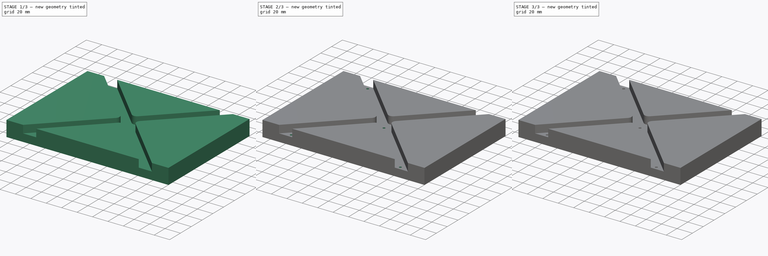
[diagram: build sequence overview — one tinted view per stage of 3, left to right]
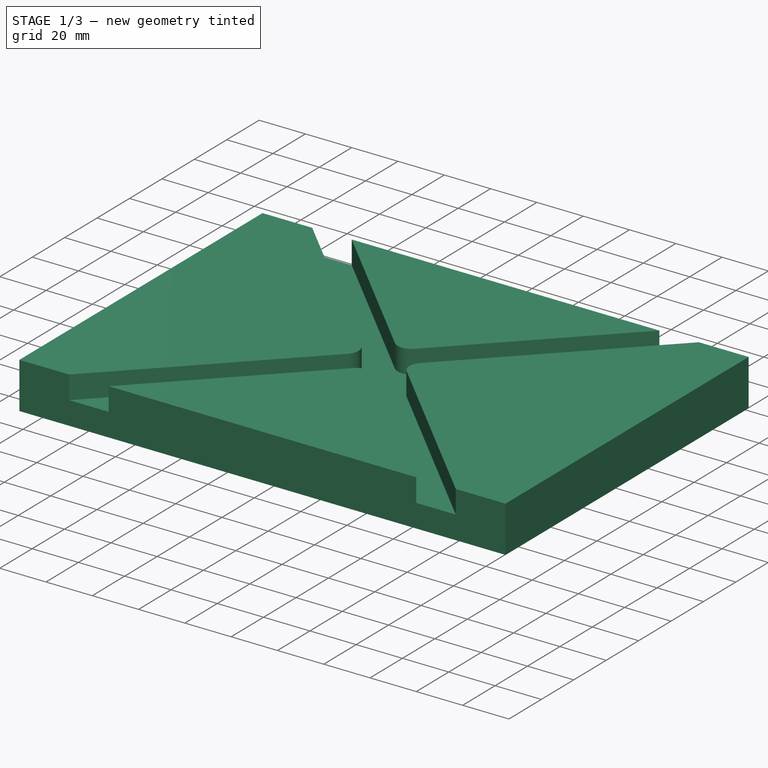
[diagram: stage 1 of 3 — iso view after this stage's code; geometry added in this stage tinted green]
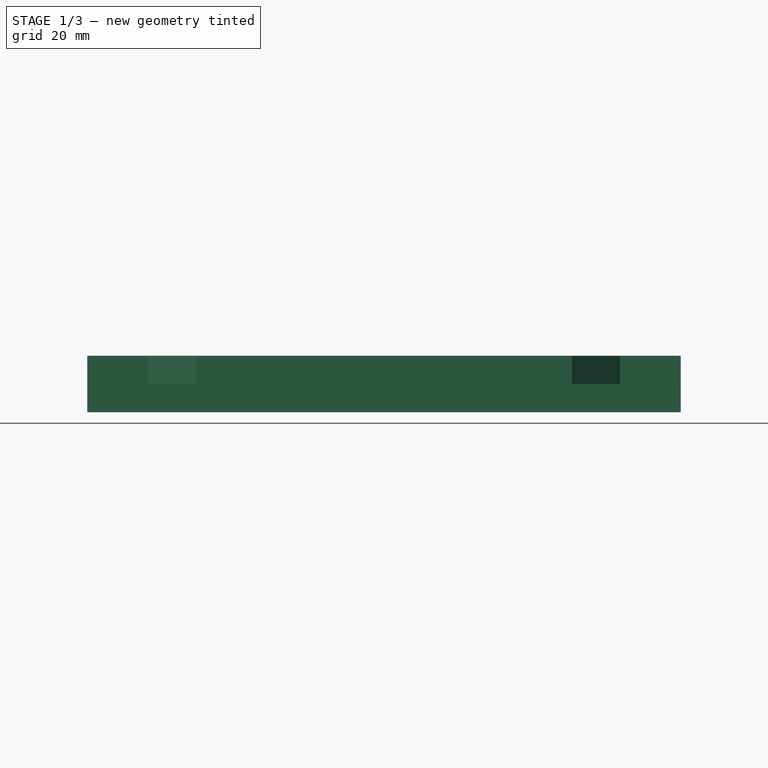
[diagram: stage 1 of 3 — front view after this stage's code; geometry added in this stage tinted green]
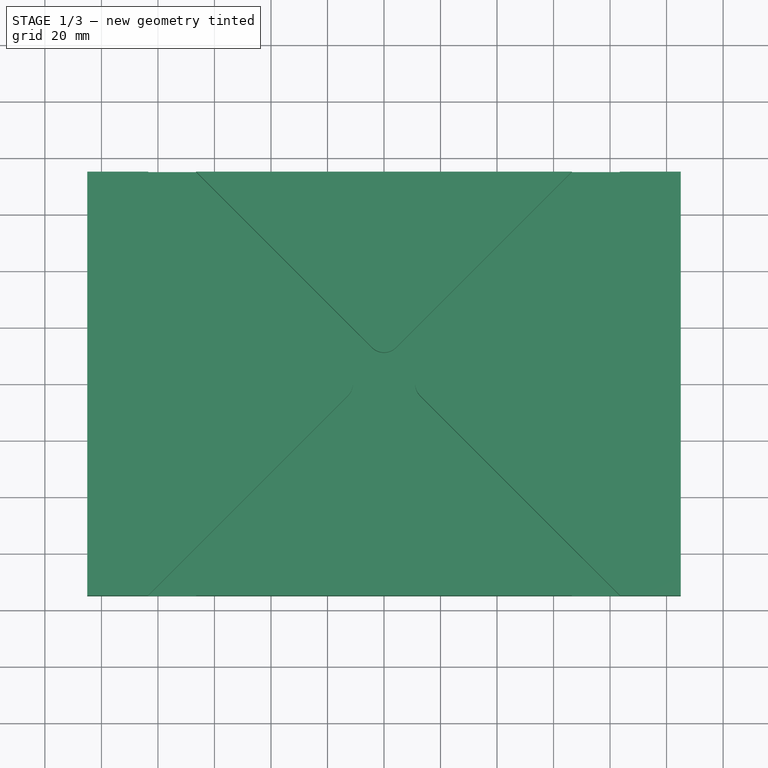
[diagram: stage 1 of 3 — top view after this stage's code; geometry added in this stage tinted green]
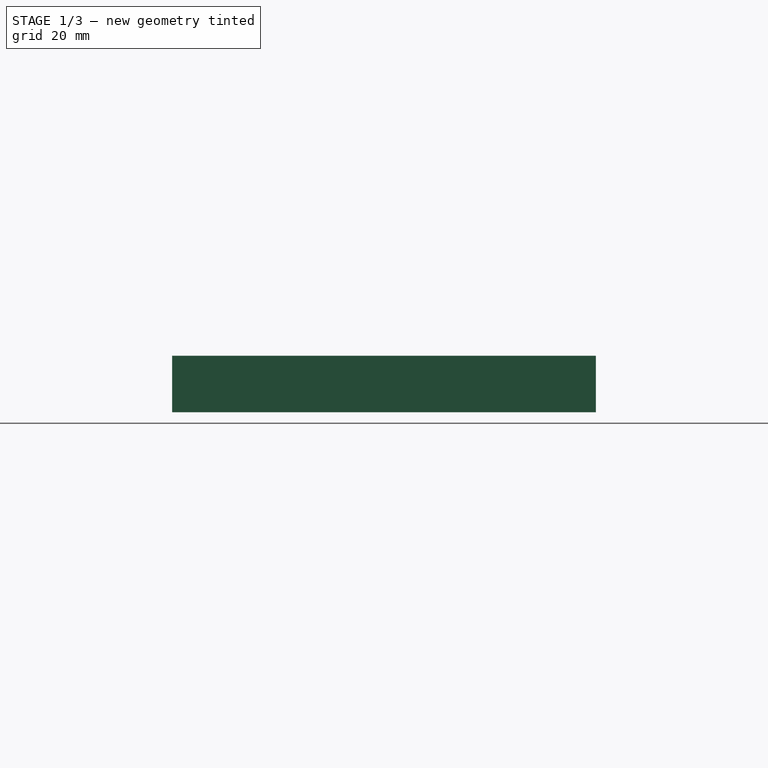
[diagram: stage 1 of 3 — right view after this stage's code; geometry added in this stage tinted green]
FCSTD DOCUMENT  (FreeCAD 0.19R22164 (Git))
Label: Y_Carriage
License: All rights reserved
LicenseURL: http://en.wikipedia.org/wiki/All_rights_reserved
objects: Sketcher::SketchObject×5, PartDesign::Pocket×3, PartDesign::Pad×1, PartDesign::Hole×1, PartDesign::Body×1
note: 16 computed .brp shape members not serialized (recipe doc carries the construction recipe); baked Part::Feature solids carry a one-line shape summary decoded from their .brp

FEATURE [Sketcher::SketchObject] Sketch
  MapMode = 5
  Support = -> [XY_Plane]
  sketch-geometry (4):
    g0: LineSegment StartX=-105 StartY=75 StartZ=0 EndX=105 EndY=75 EndZ=0
    g1: LineSegment StartX=105 StartY=75 StartZ=0 EndX=105 EndY=-75 EndZ=0
    g2: LineSegment StartX=105 StartY=-75 StartZ=0 EndX=-105 EndY=-75 EndZ=0
    g3: LineSegment StartX=-105 StartY=-75 StartZ=0 EndX=-105 EndY=75 EndZ=0
  constraints (12):
    c: Coincident(g0,g1)
    c: Coincident(g1,g2)
    c: Coincident(g2,g3)
    c: Coincident(g3,g0)
    c: Horizontal(g0)
    c: Horizontal(g2)
    c: Vertical(g1)
    c: Vertical(g3)
    c: DistanceX(g-1,g1) = 105
    c: DistanceX(g2,g1) = 210
    c: DistanceY(g1,g-1) = 75
    c: DistanceY(g1,g0) = 150
FEATURE [PartDesign::Pad] Pad
  Length = 20
  Length2 = 100
  Profile = -> Sketch
  Type = 0
FEATURE [Sketcher::SketchObject] Sketch001
  AttachmentOffset = pos=(0,0,20) rot=(0,0,1;0rad)
  MapMode = 5
  Placement = pos=(0,0,20) rot=(0,0,1;0rad)
  Support = -> [XY_Plane]
  sketch-geometry (18):
    g0: LineSegment [constr] StartX=4.24074 StartY=-4.24074 StartZ=0 EndX=75 EndY=-75 EndZ=0
    g1: LineSegment [constr] StartX=75 StartY=75 StartZ=0 EndX=4.24267 EndY=4.24267 EndZ=0
    g2: ArcOfCircle CenterX=17.013 CenterY=-6.20534e-06 CenterZ=0 NormalX=0 NormalY=0 NormalZ=1 AngleXU=0 Radius=6 StartAngle=2.35619 EndAngle=3.92699
    g3: LineSegment StartX=85.7493 StartY=77.2216 StartZ=0 EndX=12.7703 EndY=4.24263 EndZ=0
    g4: LineSegment StartX=12.7703 StartY=-4.24265 StartZ=0 EndX=91.3404 EndY=-82.8127 EndZ=0
    g5: LineSegment StartX=77.2216 StartY=85.7493 StartZ=0 EndX=4.24939 EndY=12.7771 EndZ=0
    g6: LineSegment StartX=4.24975 StartY=-12.7775 StartZ=0 EndX=82.8127 EndY=-91.3405 EndZ=0
    g7: LineSegment StartX=85.7493 StartY=77.2216 StartZ=0 EndX=77.2216 EndY=85.7493 EndZ=0
    g8: LineSegment StartX=82.8127 StartY=-91.3405 StartZ=0 EndX=91.3404 EndY=-82.8127 EndZ=0
    g9: LineSegment StartX=-77.2216 StartY=85.7501 StartZ=0 EndX=-4.23552 EndY=12.7767 EndZ=0
    g10: LineSegment StartX=-85.7486 StartY=77.2216 StartZ=0 EndX=-77.2216 EndY=85.7501 EndZ=0
    g11: LineSegment StartX=-85.7486 StartY=77.2216 StartZ=0 EndX=-12.7568 EndY=4.24264 EndZ=0
    g12: ArcOfCircle CenterX=-16.9991 CenterY=-0.00037008 CenterZ=0 NormalX=0 NormalY=0 NormalZ=1 AngleXU=0 Radius=6 StartAngle=5.4977 EndAngle=7.06867
    g13: LineSegment StartX=-12.7569 StartY=-4.2434 StartZ=0 EndX=-91.3404 EndY=-82.8127 EndZ=0
    g14: LineSegment StartX=-82.8135 StartY=-91.3412 StartZ=0 EndX=-91.3404 EndY=-82.8127 EndZ=0
    g15: LineSegment StartX=-4.23514 StartY=-12.7771 StartZ=0 EndX=-82.8135 EndY=-91.3412 EndZ=0
    g16: ArcOfCircle CenterX=0.00675017 CenterY=17.0197 CenterZ=0 NormalX=0 NormalY=0 NormalZ=1 AngleXU=0 Radius=6 StartAngle=3.92708 EndAngle=5.49779
    g17: ArcOfCircle CenterX=0.00711406 CenterY=-17.0201 CenterZ=0 NormalX=0 NormalY=0 NormalZ=1 AngleXU=0 Radius=6 StartAngle=0.785398 EndAngle=2.3561
  constraints (41):
    c: DistanceY(g-1,g1) = 75
    c: DistanceX(g-1,g1) = 75
    c: DistanceX(g-1,g0) = 75
    c: DistanceY(g0,g-1) = 75
    c: Angle(g-1,g1) = 0.785398
    c: Angle(g0,g-1) = 0.785398
    c: Tangent(g3,g2) = -1.5708
    c: Tangent(g4,g2) = -1.5708
    c: Radius(g2) = 6
    c: Parallel(g1,g3)
    c: Parallel(g0,g4)
    c: Parallel(g5,g3)
    c: Parallel(g6,g4)
    c: Coincident(g7,g3)
    c: Perpendicular(g3,g7)
    c: Coincident(g5,g7)
    c: Coincident(g8,g6)
    c: Perpendicular(g8,g6)
    c: Distance(g6,g4) = 12.06
    c: Coincident(g4,g8)
    c: Distance(g3,g5) = 12.06
    c: Distance(g1,g3) = 6.03
    c: Tangent(g11,g12) = 1.5708
    c: Tangent(g13,g12) = 1.5708
    c: Radius(g12) = 6
    c: Parallel(g9,g11)
    c: Parallel(g15,g13)
    c: Coincident(g10,g11)
    c: Perpendicular(g11,g10)
    c: Coincident(g9,g10)
    c: Coincident(g14,g15)
    c: Perpendicular(g14,g15)
    c: Distance(g15,g13) = 12.06
    c: Coincident(g13,g14)
    c: Distance(g11,g9) = 12.06
    c: Tangent(g9,g16) = -1.5708
    c: Tangent(g5,g16) = 1.5708
    c: Tangent(g15,g17) = -1.5708
    c: Tangent(g6,g17) = 1.5708
    c: Radius(g17) = 6
    c: Radius(g16) = 6
FEATURE [PartDesign::Pocket] Pocket
  BaseFeature = -> Pad
  Length = 10
  Length2 = 100
  Profile = -> Sketch001
  Type = 0
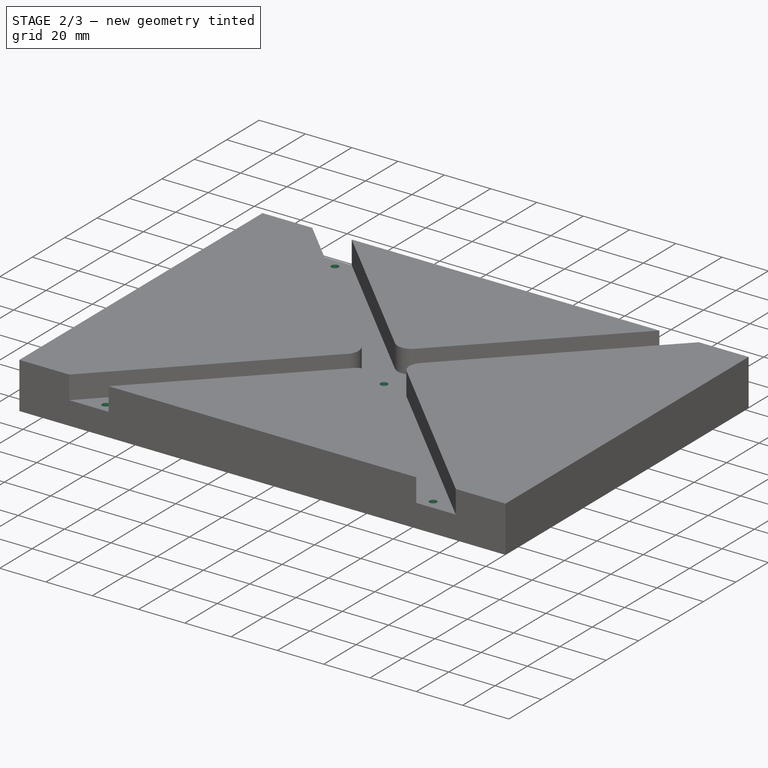
[diagram: stage 2 of 3 — iso view after this stage's code; geometry added in this stage tinted green]
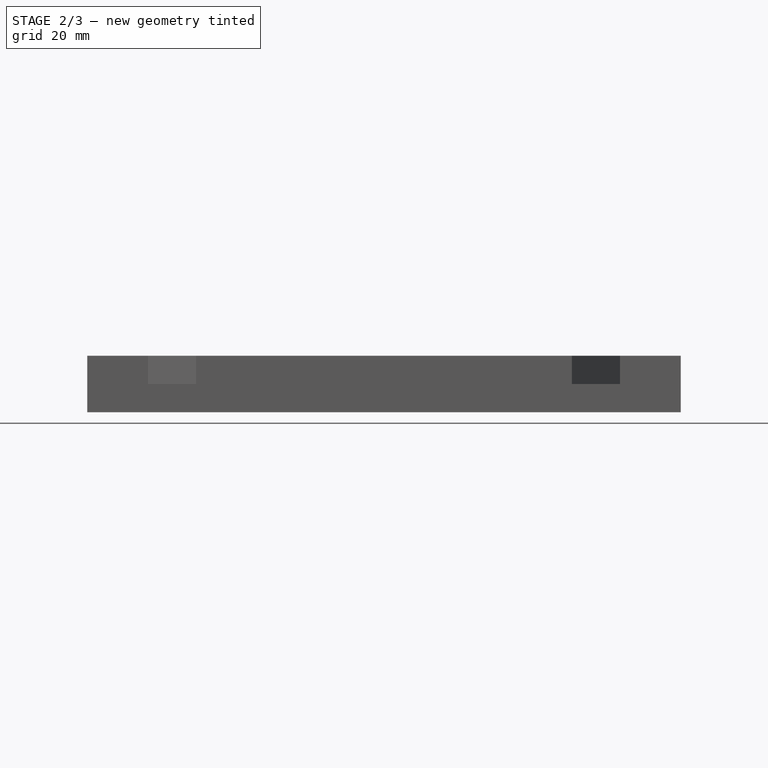
[diagram: stage 2 of 3 — front view after this stage's code; geometry added in this stage tinted green]
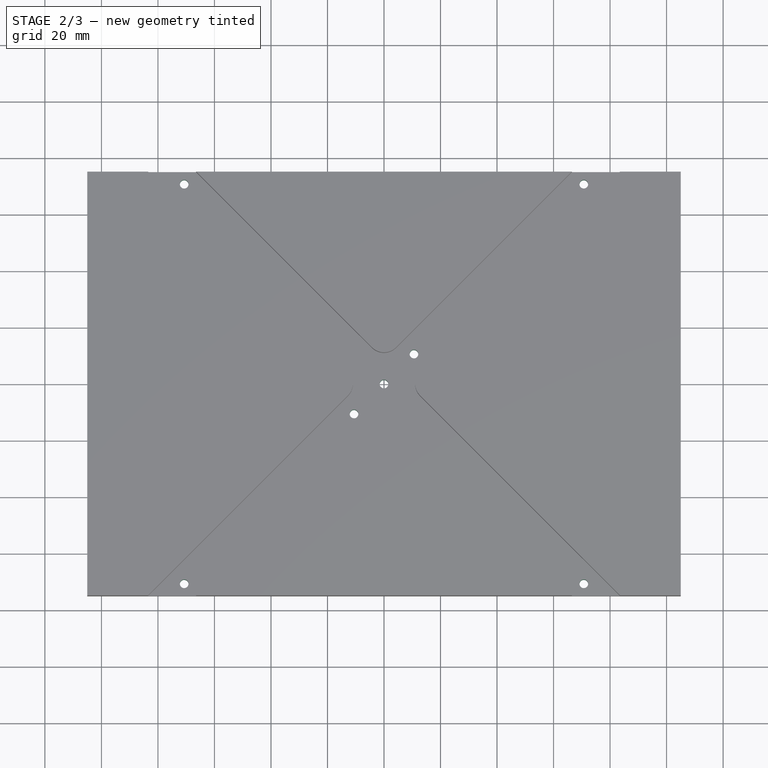
[diagram: stage 2 of 3 — top view after this stage's code; geometry added in this stage tinted green]
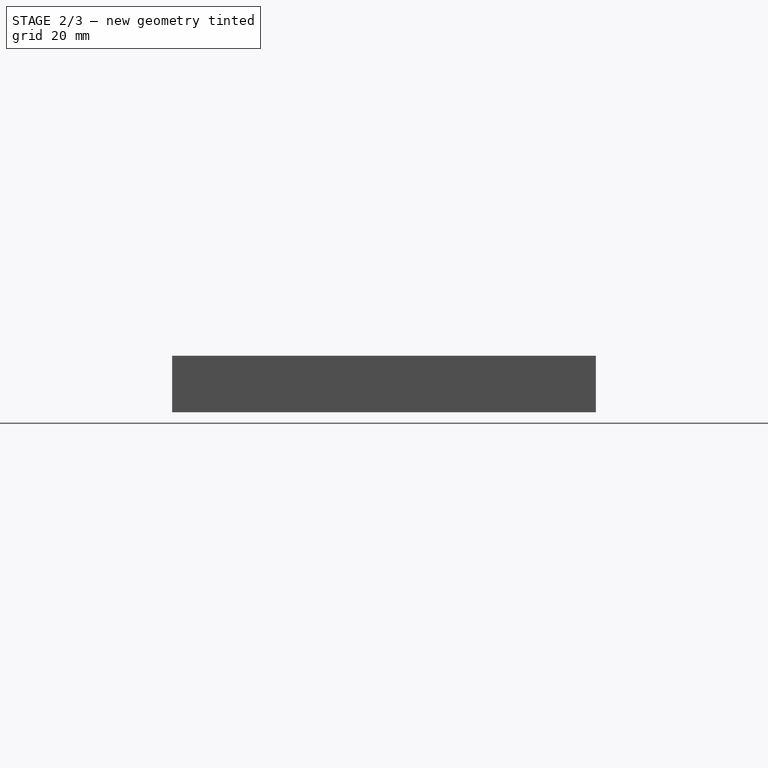
[diagram: stage 2 of 3 — right view after this stage's code; geometry added in this stage tinted green]
FEATURE [Sketcher::SketchObject] Sketch002
  AttachmentOffset = pos=(0,0,20) rot=(0,0,1;0rad)
  MapMode = 5
  Placement = pos=(0,0,20) rot=(0,0,1;0rad)
  Support = -> [XY_Plane]
  sketch-geometry (11):
    g0: Circle CenterX=70.7107 CenterY=70.7107 CenterZ=0 NormalX=0 NormalY=0 NormalZ=1 AngleXU=0 Radius=1.5
    g1: LineSegment [constr] StartX=0 StartY=0 StartZ=0 EndX=70.7107 EndY=70.7107 EndZ=0
    g2: Circle CenterX=-70.7107 CenterY=70.7107 CenterZ=0 NormalX=0 NormalY=0 NormalZ=1 AngleXU=0 Radius=1.5
    g3: Circle CenterX=70.7107 CenterY=-70.7107 CenterZ=0 NormalX=0 NormalY=0 NormalZ=1 AngleXU=0 Radius=1.5
    g4: Circle CenterX=-70.7107 CenterY=-70.7107 CenterZ=0 NormalX=0 NormalY=0 NormalZ=1 AngleXU=0 Radius=1.5
    g5: LineSegment [constr] StartX=-70.7107 StartY=70.7107 StartZ=0 EndX=0 EndY=0 EndZ=0
    g6: LineSegment [constr] StartX=0 StartY=0 StartZ=0 EndX=70.7107 EndY=-70.7107 EndZ=0
    g7: LineSegment [constr] StartX=0 StartY=0 StartZ=0 EndX=-70.7107 EndY=-70.7107 EndZ=0
    g8: Circle CenterX=0 CenterY=0 CenterZ=0 NormalX=0 NormalY=0 NormalZ=1 AngleXU=0 Radius=1.5
    g9: Circle CenterX=10.6066 CenterY=10.6066 CenterZ=0 NormalX=0 NormalY=0 NormalZ=1 AngleXU=0 Radius=1.5
    g10: Circle CenterX=-10.6066 CenterY=-10.6066 CenterZ=0 NormalX=0 NormalY=0 NormalZ=1 AngleXU=0 Radius=1.5
  constraints (28):
    c: Coincident(g1,g-1)
    c: Coincident(g1,g0)
    c: Angle(g-1,g1) = 0.785398
    c: Distance(g1,g0) = 100
    c: Radius(g0) = 1.5
    c: Radius(g2) = 1.5
    c: Radius(g3) = 1.5
    c: Radius(g4) = 1.5
    c: Distance(g-1,g2) = 100
    c: Coincident(g5,g2)
    c: Coincident(g5,g-1)
    c: Coincident(g6,g5)
    c: Coincident(g6,g3)
    c: Coincident(g7,g5)
    c: Coincident(g7,g4)
    c: Angle(g7,g-1) = 2.35619
    c: Angle(g6,g-1) = 0.785398
    c: Angle(g-1,g5) = 2.35619
    c: Distance(g-1,g3) = 100
    c: Distance(g4,g-1) = 100
    c: Coincident(g8,g-1)
    c: Radius(g8) = 1.5
    c: PointOnObject(g9,g1)
    c: PointOnObject(g10,g7)
    c: Radius(g9) = 1.5
    c: Radius(g10) = 1.5
    c: Distance(g8,g9) = 15
    c: Distance(g10,g8) = 15
FEATURE [PartDesign::Hole] Hole
  BaseFeature = -> Pocket
  Depth = 25
  DepthType = 0
  Diameter = 3.05
  DrillPoint = 1
  DrillPointAngle = 118
  HoleCutCountersinkAngle = 90
  HoleCutDepth = 0
  HoleCutDiameter = 0
  HoleCutType = 0
  ModelActualThread = false
  Profile = -> Sketch002
  Tapered = false
  TaperedAngle = 90
  ThreadAngle = 0
  ThreadClass = 0
  ThreadCutOffInner = 0
  ThreadCutOffOuter = 0
  ThreadDirection = 0
  ThreadFit = 0
  ThreadPitch = 0
  ThreadSize = 0
  ThreadType = 0
  Threaded = false
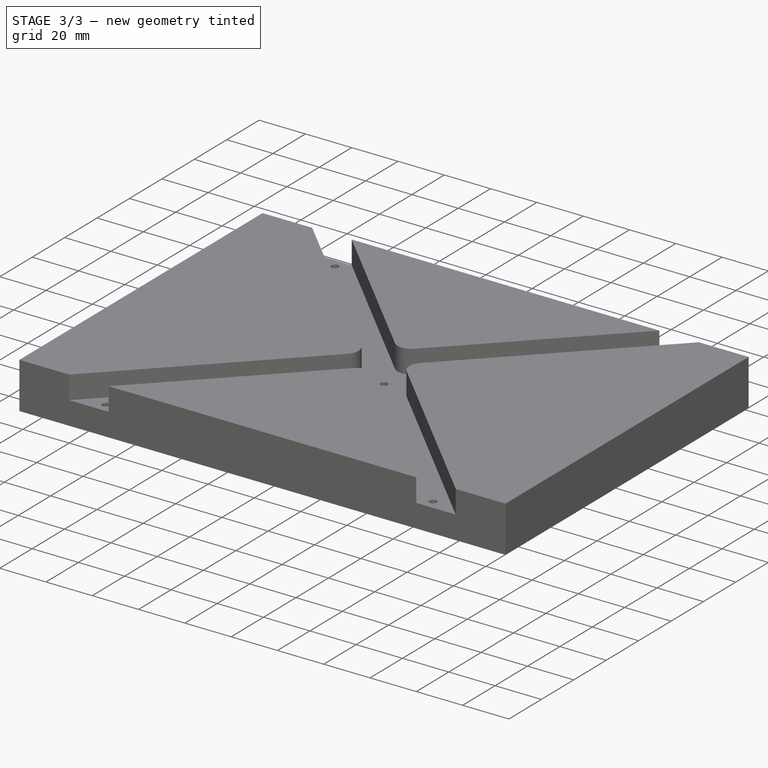
[diagram: stage 3 of 3 — iso view after this stage's code; geometry added in this stage tinted green]
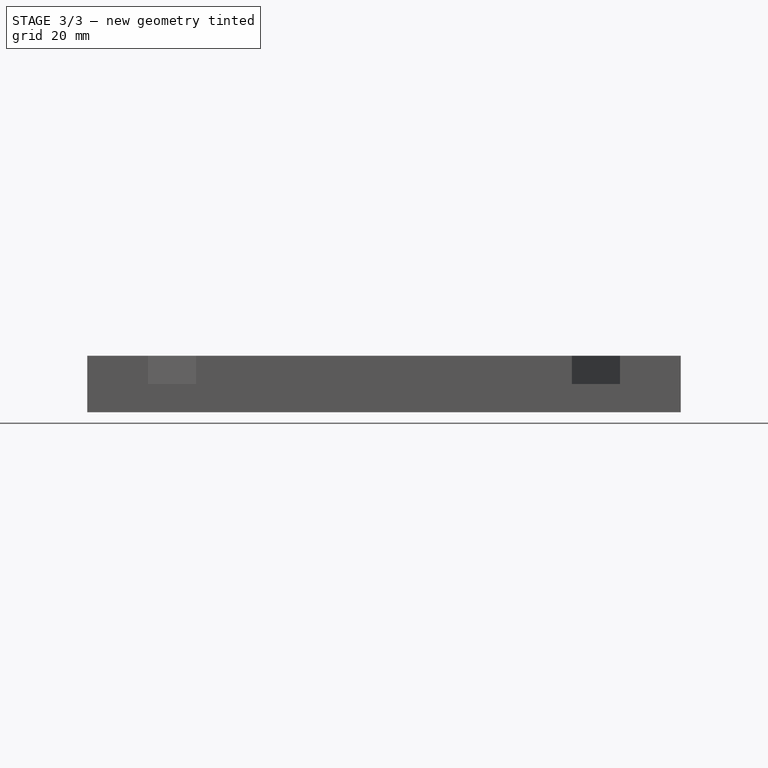
[diagram: stage 3 of 3 — front view after this stage's code; geometry added in this stage tinted green]
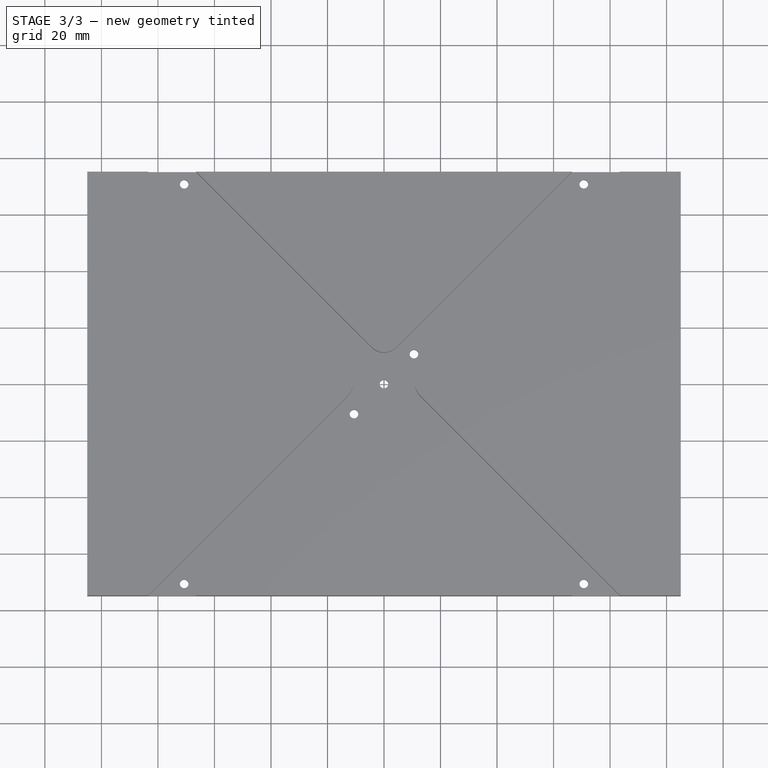
[diagram: stage 3 of 3 — top view after this stage's code; geometry added in this stage tinted green]
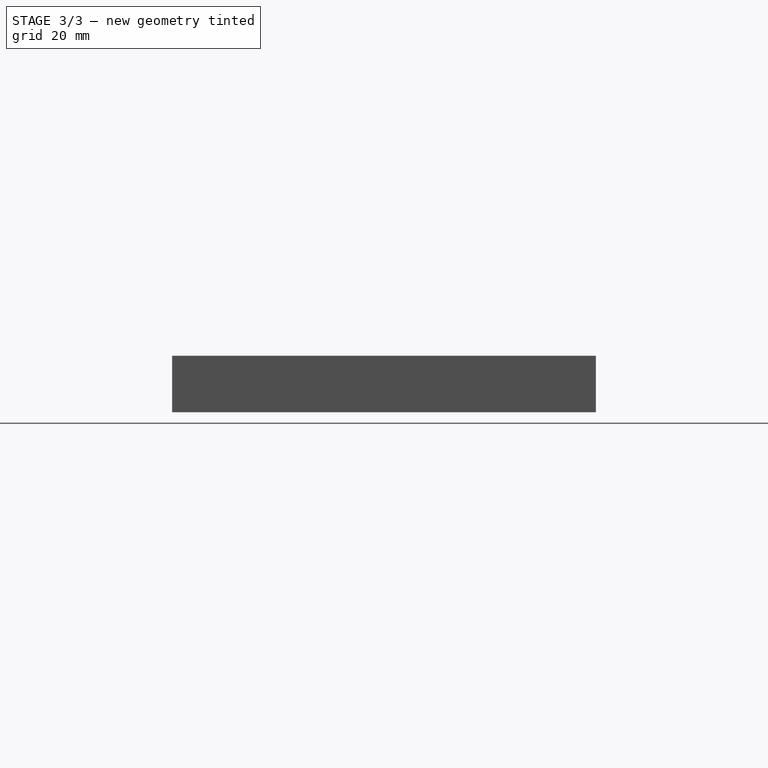
[diagram: stage 3 of 3 — right view after this stage's code; geometry added in this stage tinted green]
FEATURE [Sketcher::SketchObject] Sketch003
  MapMode = 5
  Support = -> [XY_Plane]
  sketch-geometry (52):
    g0: LineSegment [constr] StartX=0 StartY=0 StartZ=0 EndX=70.7107 EndY=70.7107 EndZ=0
    g1: LineSegment StartX=69.1807 StartY=73.3607 StartZ=0 EndX=67.6507 EndY=70.7107 EndZ=0
    g2: LineSegment StartX=67.6507 StartY=70.7107 StartZ=0 EndX=69.1807 EndY=68.0607 EndZ=0
    g3: LineSegment StartX=69.1807 StartY=68.0607 StartZ=0 EndX=72.2407 EndY=68.0607 EndZ=0
    g4: LineSegment StartX=72.2407 StartY=68.0607 StartZ=0 EndX=73.7706 EndY=70.7107 EndZ=0
    g5: LineSegment StartX=73.7706 StartY=70.7107 StartZ=0 EndX=72.2407 EndY=73.3607 EndZ=0
    g6: LineSegment StartX=72.2407 StartY=73.3607 StartZ=0 EndX=69.1807 EndY=73.3607 EndZ=0
    g7: Circle [constr] CenterX=70.7107 CenterY=70.7107 CenterZ=0 NormalX=0 NormalY=0 NormalZ=1 AngleXU=0 Radius=3.05996
    g8: LineSegment StartX=13.6666 StartY=10.6066 StartZ=0 EndX=12.1366 EndY=13.2566 EndZ=0
    g9: LineSegment StartX=12.1366 StartY=13.2566 StartZ=0 EndX=9.07662 EndY=13.2566 EndZ=0
    g10: LineSegment StartX=9.07662 StartY=13.2566 StartZ=0 EndX=7.54665 EndY=10.6066 EndZ=0
    g11: LineSegment StartX=7.54665 StartY=10.6066 StartZ=0 EndX=9.07662 EndY=7.9566 EndZ=0
    g12: LineSegment StartX=9.07662 StartY=7.9566 StartZ=0 EndX=12.1366 EndY=7.9566 EndZ=0
    g13: LineSegment StartX=12.1366 StartY=7.9566 StartZ=0 EndX=13.6666 EndY=10.6066 EndZ=0
    g14: Circle [constr] CenterX=10.6066 CenterY=10.6066 CenterZ=0 NormalX=0 NormalY=0 NormalZ=1 AngleXU=0 Radius=3.05996
    g15: LineSegment StartX=3.05996 StartY=0 StartZ=0 EndX=1.52998 EndY=2.65 EndZ=0
    g16: LineSegment StartX=1.52998 StartY=2.65 StartZ=0 EndX=-1.52998 EndY=2.65 EndZ=0
    g17: LineSegment StartX=-1.52998 StartY=2.65 StartZ=0 EndX=-3.05996 EndY=-8.26e-14 EndZ=0
    g18: LineSegment StartX=-3.05996 StartY=-8.26e-14 StartZ=0 EndX=-1.52998 EndY=-2.65 EndZ=0
    g19: LineSegment StartX=-1.52998 StartY=-2.65 StartZ=0 EndX=1.52998 EndY=-2.65 EndZ=0
    g20: LineSegment StartX=1.52998 StartY=-2.65 StartZ=0 EndX=3.05996 EndY=0 EndZ=0
    g21: Circle [constr] CenterX=0 CenterY=0 CenterZ=0 NormalX=0 NormalY=0 NormalZ=1 AngleXU=0 Radius=3.05996
    g22: LineSegment [constr] StartX=0 StartY=0 StartZ=0 EndX=-70.7107 EndY=-70.7107 EndZ=0
    g23: LineSegment StartX=-7.54665 StartY=-10.6066 StartZ=0 EndX=-9.07662 EndY=-7.9566 EndZ=0
    g24: LineSegment StartX=-9.07662 StartY=-7.9566 StartZ=0 EndX=-12.1366 EndY=-7.9566 EndZ=0
    g25: LineSegment StartX=-12.1366 StartY=-7.9566 StartZ=0 EndX=-13.6666 EndY=-10.6066 EndZ=0
    g26: LineSegment StartX=-13.6666 StartY=-10.6066 StartZ=0 EndX=-12.1366 EndY=-13.2566 EndZ=0
    g27: LineSegment StartX=-12.1366 StartY=-13.2566 StartZ=0 EndX=-9.07662 EndY=-13.2566 EndZ=0
    g28: LineSegment StartX=-9.07662 StartY=-13.2566 StartZ=0 EndX=-7.54665 EndY=-10.6066 EndZ=0
    g29: Circle [constr] CenterX=-10.6066 CenterY=-10.6066 CenterZ=0 NormalX=0 NormalY=0 NormalZ=1 AngleXU=0 Radius=3.05996
    g30: LineSegment StartX=-72.2407 StartY=-68.0607 StartZ=0 EndX=-73.7706 EndY=-70.7107 EndZ=0
    g31: LineSegment StartX=-73.7706 StartY=-70.7107 StartZ=0 EndX=-72.2407 EndY=-73.3607 EndZ=0
    g32: LineSegment StartX=-72.2407 StartY=-73.3607 StartZ=0 EndX=-69.1807 EndY=-73.3607 EndZ=0
    g33: LineSegment StartX=-69.1807 StartY=-73.3607 StartZ=0 EndX=-67.6507 EndY=-70.7107 EndZ=0
    g34: LineSegment StartX=-67.6507 StartY=-70.7107 StartZ=0 EndX=-69.1807 EndY=-68.0607 EndZ=0
    g35: LineSegment StartX=-69.1807 StartY=-68.0607 StartZ=0 EndX=-72.2407 EndY=-68.0607 EndZ=0
    g36: Circle [constr] CenterX=-70.7107 CenterY=-70.7107 CenterZ=0 NormalX=0 NormalY=0 NormalZ=1 AngleXU=0 Radius=3.05996
    g37: LineSegment [constr] StartX=-70.7107 StartY=70.7107 StartZ=0 EndX=70.7107 EndY=-70.7107 EndZ=0
    g38: LineSegment StartX=-67.6507 StartY=70.7107 StartZ=0 EndX=-69.1807 EndY=73.3607 EndZ=0
    g39: LineSegment StartX=-69.1807 StartY=73.3607 StartZ=0 EndX=-72.2407 EndY=73.3607 EndZ=0
    g40: LineSegment StartX=-72.2407 StartY=73.3607 StartZ=0 EndX=-73.7706 EndY=70.7107 EndZ=0
    g41: LineSegment StartX=-73.7706 StartY=70.7107 StartZ=0 EndX=-72.2407 EndY=68.0607 EndZ=0
    g42: LineSegment StartX=-72.2407 StartY=68.0607 StartZ=0 EndX=-69.1807 EndY=68.0607 EndZ=0
    g43: LineSegment StartX=-69.1807 StartY=68.0607 StartZ=0 EndX=-67.6507 EndY=70.7107 EndZ=0
    g44: Circle [constr] CenterX=-70.7107 CenterY=70.7107 CenterZ=0 NormalX=0 NormalY=0 NormalZ=1 AngleXU=0 Radius=3.05996
    g45: LineSegment StartX=73.7706 StartY=-70.7107 StartZ=0 EndX=72.2407 EndY=-68.0607 EndZ=0
    g46: LineSegment StartX=72.2407 StartY=-68.0607 StartZ=0 EndX=69.1807 EndY=-68.0607 EndZ=0
    g47: LineSegment StartX=69.1807 StartY=-68.0607 StartZ=0 EndX=67.6507 EndY=-70.7107 EndZ=0
    g48: LineSegment StartX=67.6507 StartY=-70.7107 StartZ=0 EndX=69.1807 EndY=-73.3607 EndZ=0
    g49: LineSegment StartX=69.1807 StartY=-73.3607 StartZ=0 EndX=72.2407 EndY=-73.3607 EndZ=0
    g50: LineSegment StartX=72.2407 StartY=-73.3607 StartZ=0 EndX=73.7706 EndY=-70.7107 EndZ=0
    g51: Circle [constr] CenterX=70.7107 CenterY=-70.7107 CenterZ=0 NormalX=0 NormalY=0 NormalZ=1 AngleXU=0 Radius=3.05996
  constraints (124):
    c: Coincident(g-1,g0)
    c: Angle(g-1,g0) = 0.785398
    c: Distance(g0,g0) = 100
    c: Coincident(g1,g2)
    c: Coincident(g2,g3)
    c: Coincident(g3,g4)
    c: Coincident(g4,g5)
    c: Coincident(g5,g6)
    c: Coincident(g6,g1)
    c: Equal(g1, g2-g6) x5
    c: PointOnObject(g1,g7)
    c: PointOnObject(g2,g7)
    c: PointOnObject(g3,g7)
    c: PointOnObject(g4,g7)
    c: PointOnObject(g5,g7)
    c: PointOnObject(g6,g7)
    c: Coincident(g7,g0)
    c: Horizontal(g6)
    c: Distance(g2,g4) = 5.3
    c: Coincident(g8,g9)
    c: Coincident(g9,g10)
    c: Coincident(g10,g11)
    c: Coincident(g11,g12)
    c: Coincident(g12,g13)
    c: Coincident(g13,g8)
    c: Equal(g8, g9-g13) x5
    c: PointOnObject(g8,g14)
    c: PointOnObject(g9,g14)
    c: PointOnObject(g10,g14)
    c: PointOnObject(g11,g14)
    c: PointOnObject(g12,g14)
    c: PointOnObject(g13,g14)
    c: PointOnObject(g14,g0)
    c: Coincident(g15,g16)
    c: Coincident(g16,g17)
    c: Coincident(g17,g18)
    c: Coincident(g18,g19)
    c: Coincident(g19,g20)
    c: Coincident(g20,g15)
    c: Equal(g15, g16-g20) x5
    c: PointOnObject(g15,g21)
    c: PointOnObject(g16,g21)
    c: PointOnObject(g17,g21)
    c: PointOnObject(g18,g21)
    c: PointOnObject(g19,g21)
    c: PointOnObject(g20,g21)
    c: Coincident(g21,g-1)
    c: Horizontal(g16)
    c: Horizontal(g9)
    c: Distance(g11,g8) = 5.3
    c: Distance(g18,g15) = 5.3
    c: Distance(g-1,g14) = 15
    c: Coincident(g22,g-1)
    c: Angle(g22,g-1) = 2.35619
    c: Distance(g22,g22) = 100
    c: Coincident(g23,g24)
    c: Coincident(g24,g25)
    c: Coincident(g25,g26)
    c: Coincident(g26,g27)
    c: Coincident(g27,g28)
    c: Coincident(g28,g23)
    c: Equal(g23, g24-g28) x5
    c: PointOnObject(g23,g29)
    c: PointOnObject(g24,g29)
    c: PointOnObject(g25,g29)
    c: PointOnObject(g26,g29)
    c: PointOnObject(g27,g29)
    c: PointOnObject(g28,g29)
    c: PointOnObject(g29,g22)
    c: Coincident(g30,g31)
    c: Coincident(g31,g32)
    c: Coincident(g32,g33)
    c: Coincident(g33,g34)
    c: Coincident(g34,g35)
    c: Coincident(g35,g30)
    c: Equal(g30, g31-g35) x5
    c: PointOnObject(g30,g36)
    c: PointOnObject(g31,g36)
    c: PointOnObject(g32,g36)
    c: PointOnObject(g33,g36)
    c: PointOnObject(g34,g36)
    c: PointOnObject(g35,g36)
    c: Coincident(g36,g22)
    c: Horizontal(g35)
    c: Horizontal(g24)
    c: Distance(g27,g25) = 5.3
    c: Distance(g32,g30) = 5.3
    c: Distance(g-1,g29) = 15
    c: PointOnObject(g-1,g37)
    c: Angle(g-1,g37) = 2.35619
    c: Distance(g37,g-1) = 100
    c: Distance(g-1,g37) = 100
    c: Coincident(g38,g39)
    c: Coincident(g39,g40)
    c: Coincident(g40,g41)
    c: Coincident(g41,g42)
    c: Coincident(g42,g43)
    c: Coincident(g43,g38)
    c: Equal(g38, g39-g43) x5
    c: PointOnObject(g38,g44)
    c: PointOnObject(g39,g44)
    c: PointOnObject(g40,g44)
    c: PointOnObject(g41,g44)
    c: PointOnObject(g42,g44)
    c: PointOnObject(g43,g44)
    c: Coincident(g44,g37)
    c: Coincident(g45,g46)
    c: Coincident(g46,g47)
    c: Coincident(g47,g48)
    c: Coincident(g48,g49)
    c: Coincident(g49,g50)
    c: Coincident(g50,g45)
    c: Equal(g45, g46-g50) x5
    c: PointOnObject(g45,g51)
    c: PointOnObject(g46,g51)
    c: PointOnObject(g47,g51)
    c: PointOnObject(g48,g51)
    c: PointOnObject(g49,g51)
    c: PointOnObject(g50,g51)
    c: Coincident(g51,g37)
    c: Horizontal(g46)
    c: Distance(g48,g45) = 5.3
    c: Distance(g40,g38) = 5.3
    c: Horizontal(g39)
FEATURE [PartDesign::Pocket] Pocket001
  BaseFeature = -> Hole
  Length = 2.5
  Length2 = 100
  Profile = -> Sketch003
  Reversed = true
  Type = 0
FEATURE [Sketcher::SketchObject] Sketch004
  MapMode = 5
  Support = -> [XY_Plane]
  sketch-geometry (80):
    g0: LineSegment StartX=-72 StartY=-49.5 StartZ=0 EndX=-77.4019 EndY=-49.5 EndZ=0
    g1: LineSegment StartX=-101 StartY=-52.5 StartZ=0 EndX=-101 EndY=-61.5 EndZ=0
    g2: LineSegment StartX=-98 StartY=-64.5 StartZ=0 EndX=-92.5981 EndY=-64.5 EndZ=0
    g3: LineSegment StartX=-69 StartY=-61.5 StartZ=0 EndX=-69 EndY=-52.5 EndZ=0
    g4: LineSegment [constr] StartX=-85 StartY=-49.5 StartZ=0 EndX=-85 EndY=-54.3121 EndZ=0
    g5: LineSegment [constr] StartX=-69 StartY=-57 StartZ=0 EndX=-101 EndY=-57 EndZ=0
    g6: ArcOfCircle CenterX=-69 CenterY=-49.5 CenterZ=0 NormalX=0 NormalY=0 NormalZ=1 AngleXU=0 Radius=3 StartAngle=4.71239 EndAngle=9.42478
    g7: ArcOfCircle CenterX=-69 CenterY=-64.5 CenterZ=0 NormalX=0 NormalY=0 NormalZ=1 AngleXU=0 Radius=3 StartAngle=3.14159 EndAngle=7.85398
    g8: ArcOfCircle CenterX=-101 CenterY=-64.5 CenterZ=0 NormalX=0 NormalY=0 NormalZ=1 AngleXU=0 Radius=3 StartAngle=1.5708 EndAngle=6.28319
    g9: ArcOfCircle CenterX=-101 CenterY=-49.5 CenterZ=0 NormalX=0 NormalY=0 NormalZ=1 AngleXU=0 Radius=3 StartAngle=0 EndAngle=4.71239
    g10: LineSegment StartX=-80 StartY=-48 StartZ=0 EndX=-90 EndY=-48 EndZ=0
    g11: LineSegment StartX=-90 StartY=-66 StartZ=0 EndX=-80 EndY=-66 EndZ=0
    g12: LineSegment [constr] StartX=-77 StartY=-63 StartZ=0 EndX=-77 EndY=-57 EndZ=0
    g13: LineSegment [constr] StartX=-93 StartY=-57 StartZ=0 EndX=-93 EndY=-63 EndZ=0
    g14: ArcOfCircle CenterX=-90 CenterY=-51 CenterZ=0 NormalX=0 NormalY=0 NormalZ=1 AngleXU=0 Radius=3 StartAngle=1.5708 EndAngle=2.61799
    g15: ArcOfCircle CenterX=-80 CenterY=-51 CenterZ=0 NormalX=0 NormalY=0 NormalZ=1 AngleXU=0 Radius=3 StartAngle=0.523599 EndAngle=1.5708
    g16: ArcOfCircle CenterX=-80 CenterY=-63 CenterZ=0 NormalX=0 NormalY=0 NormalZ=1 AngleXU=0 Radius=3 StartAngle=4.71239 EndAngle=5.75959
    g17: ArcOfCircle CenterX=-90 CenterY=-63 CenterZ=0 NormalX=0 NormalY=0 NormalZ=1 AngleXU=0 Radius=3 StartAngle=3.66519 EndAngle=4.71239
    g18: LineSegment StartX=-92.5981 StartY=-49.5 StartZ=0 EndX=-98 EndY=-49.5 EndZ=0
    g19: LineSegment StartX=-77.4019 StartY=-64.5 StartZ=0 EndX=-72 EndY=-64.5 EndZ=0
    g20: LineSegment StartX=72 StartY=-49.5 StartZ=0 EndX=77.4019 EndY=-49.5 EndZ=0
    g21: LineSegment StartX=101 StartY=-52.5 StartZ=0 EndX=101 EndY=-61.5 EndZ=0
    g22: LineSegment StartX=98 StartY=-64.5 StartZ=0 EndX=92.5981 EndY=-64.5 EndZ=0
    g23: LineSegment StartX=69 StartY=-61.5 StartZ=0 EndX=69 EndY=-52.5 EndZ=0
    g24: LineSegment [constr] StartX=85 StartY=-49.5 StartZ=0 EndX=85 EndY=-54.3121 EndZ=0
    g25: LineSegment [constr] StartX=69 StartY=-57 StartZ=0 EndX=101 EndY=-57 EndZ=0
    g26: ArcOfCircle CenterX=69 CenterY=-49.5 CenterZ=0 NormalX=0 NormalY=0 NormalZ=1 AngleXU=0 Radius=3 StartAngle=0 EndAngle=4.71239
    g27: ArcOfCircle CenterX=69 CenterY=-64.5 CenterZ=0 NormalX=0 NormalY=0 NormalZ=1 AngleXU=0 Radius=3 StartAngle=1.5708 EndAngle=6.28319
    g28: ArcOfCircle CenterX=101 CenterY=-64.5 CenterZ=0 NormalX=0 NormalY=0 NormalZ=1 AngleXU=0 Radius=3 StartAngle=3.14159 EndAngle=7.85398
    g29: ArcOfCircle CenterX=101 CenterY=-49.5 CenterZ=0 NormalX=0 NormalY=0 NormalZ=1 AngleXU=0 Radius=3 StartAngle=4.71239 EndAngle=9.42478
    g30: LineSegment StartX=80 StartY=-48 StartZ=0 EndX=90 EndY=-48 EndZ=0
    g31: LineSegment StartX=90 StartY=-66 StartZ=0 EndX=80 EndY=-66 EndZ=0
    g32: LineSegment [constr] StartX=77 StartY=-63 StartZ=0 EndX=77 EndY=-57 EndZ=0
    g33: LineSegment [constr] StartX=93 StartY=-57 StartZ=0 EndX=93 EndY=-63 EndZ=0
    g34: ArcOfCircle CenterX=90 CenterY=-51 CenterZ=0 NormalX=0 NormalY=0 NormalZ=1 AngleXU=0 Radius=3 StartAngle=0.523599 EndAngle=1.5708
    g35: ArcOfCircle CenterX=80 CenterY=-51 CenterZ=0 NormalX=0 NormalY=0 NormalZ=1 AngleXU=0 Radius=3 StartAngle=1.5708 EndAngle=2.61799
    g36: ArcOfCircle CenterX=80 CenterY=-63 CenterZ=0 NormalX=0 NormalY=0 NormalZ=1 AngleXU=0 Radius=3 StartAngle=3.66519 EndAngle=4.71239
    g37: ArcOfCircle CenterX=90 CenterY=-63 CenterZ=0 NormalX=0 NormalY=0 NormalZ=1 AngleXU=0 Radius=3 StartAngle=4.71239 EndAngle=5.75959
    g38: LineSegment StartX=92.5981 StartY=-49.5 StartZ=0 EndX=98 EndY=-49.5 EndZ=0
    g39: LineSegment StartX=77.4019 StartY=-64.5 StartZ=0 EndX=72 EndY=-64.5 EndZ=0
    g40: LineSegment StartX=-72 StartY=49.5 StartZ=0 EndX=-77.4019 EndY=49.5 EndZ=0
    g41: LineSegment StartX=-101 StartY=52.5 StartZ=0 EndX=-101 EndY=61.5 EndZ=0
    g42: LineSegment StartX=-98 StartY=64.5 StartZ=0 EndX=-92.5981 EndY=64.5 EndZ=0
    g43: LineSegment StartX=-69 StartY=61.5 StartZ=0 EndX=-69 EndY=52.5 EndZ=0
    g44: LineSegment [constr] StartX=-85 StartY=49.5 StartZ=0 EndX=-85 EndY=54.3121 EndZ=0
    g45: LineSegment [constr] StartX=-69 StartY=57 StartZ=0 EndX=-101 EndY=57 EndZ=0
    g46: ArcOfCircle CenterX=-69 CenterY=49.5 CenterZ=0 NormalX=0 NormalY=0 NormalZ=1 AngleXU=0 Radius=3 StartAngle=3.14159 EndAngle=7.85398
    g47: ArcOfCircle CenterX=-69 CenterY=64.5 CenterZ=0 NormalX=0 NormalY=0 NormalZ=1 AngleXU=0 Radius=3 StartAngle=4.71239 EndAngle=9.42478
    g48: ArcOfCircle CenterX=-101 CenterY=64.5 CenterZ=0 NormalX=0 NormalY=0 NormalZ=1 AngleXU=0 Radius=3 StartAngle=0 EndAngle=4.71239
    g49: ArcOfCircle CenterX=-101 CenterY=49.5 CenterZ=0 NormalX=0 NormalY=0 NormalZ=1 AngleXU=0 Radius=3 StartAngle=1.5708 EndAngle=6.28319
    g50: LineSegment StartX=-80 StartY=48 StartZ=0 EndX=-90 EndY=48 EndZ=0
    g51: LineSegment StartX=-90 StartY=66 StartZ=0 EndX=-80 EndY=66 EndZ=0
    g52: LineSegment [constr] StartX=-77 StartY=63 StartZ=0 EndX=-77 EndY=57 EndZ=0
    g53: LineSegment [constr] StartX=-93 StartY=57 StartZ=0 EndX=-93 EndY=63 EndZ=0
    g54: ArcOfCircle CenterX=-90 CenterY=51 CenterZ=0 NormalX=0 NormalY=0 NormalZ=1 AngleXU=0 Radius=3 StartAngle=3.66519 EndAngle=4.71239
    g55: ArcOfCircle CenterX=-80 CenterY=51 CenterZ=0 NormalX=0 NormalY=0 NormalZ=1 AngleXU=0 Radius=3 StartAngle=4.71239 EndAngle=5.75959
    g56: ArcOfCircle CenterX=-80 CenterY=63 CenterZ=0 NormalX=0 NormalY=0 NormalZ=1 AngleXU=0 Radius=3 StartAngle=0.523599 EndAngle=1.5708
    g57: ArcOfCircle CenterX=-90 CenterY=63 CenterZ=0 NormalX=0 NormalY=0 NormalZ=1 AngleXU=0 Radius=3 StartAngle=1.5708 EndAngle=2.61799
    g58: LineSegment StartX=-92.5981 StartY=49.5 StartZ=0 EndX=-98 EndY=49.5 EndZ=0
    g59: LineSegment StartX=-77.4019 StartY=64.5 StartZ=0 EndX=-72 EndY=64.5 EndZ=0
    g60: LineSegment StartX=72 StartY=49.5 StartZ=0 EndX=77.4019 EndY=49.5 EndZ=0
    g61: LineSegment StartX=101 StartY=52.5 StartZ=0 EndX=101 EndY=61.5 EndZ=0
    g62: LineSegment StartX=98 StartY=64.5 StartZ=0 EndX=92.5981 EndY=64.5 EndZ=0
    g63: LineSegment StartX=69 StartY=61.5 StartZ=0 EndX=69 EndY=52.5 EndZ=0
    g64: LineSegment [constr] StartX=85 StartY=49.5 StartZ=0 EndX=85 EndY=54.3121 EndZ=0
    g65: LineSegment [constr] StartX=69 StartY=57 StartZ=0 EndX=101 EndY=57 EndZ=0
    g66: ArcOfCircle CenterX=69 CenterY=49.5 CenterZ=0 NormalX=0 NormalY=0 NormalZ=1 AngleXU=0 Radius=3 StartAngle=1.5708 EndAngle=6.28319
    g67: ArcOfCircle CenterX=69 CenterY=64.5 CenterZ=0 NormalX=0 NormalY=0 NormalZ=1 AngleXU=0 Radius=3 StartAngle=0 EndAngle=4.71239
    g68: ArcOfCircle CenterX=101 CenterY=64.5 CenterZ=0 NormalX=0 NormalY=0 NormalZ=1 AngleXU=0 Radius=3 StartAngle=4.71239 EndAngle=9.42478
    g69: ArcOfCircle CenterX=101 CenterY=49.5 CenterZ=0 NormalX=0 NormalY=0 NormalZ=1 AngleXU=0 Radius=3 StartAngle=3.14159 EndAngle=7.85398
    g70: LineSegment StartX=80 StartY=48 StartZ=0 EndX=90 EndY=48 EndZ=0
    g71: LineSegment StartX=90 StartY=66 StartZ=0 EndX=80 EndY=66 EndZ=0
    g72: LineSegment [constr] StartX=77 StartY=63 StartZ=0 EndX=77 EndY=57 EndZ=0
    g73: LineSegment [constr] StartX=93 StartY=57 StartZ=0 EndX=93 EndY=63 EndZ=0
    g74: ArcOfCircle CenterX=90 CenterY=51 CenterZ=0 NormalX=0 NormalY=0 NormalZ=1 AngleXU=0 Radius=3 StartAngle=4.71239 EndAngle=5.75959
    g75: ArcOfCircle CenterX=80 CenterY=51 CenterZ=0 NormalX=0 NormalY=0 NormalZ=1 AngleXU=0 Radius=3 StartAngle=3.66519 EndAngle=4.71239
    g76: ArcOfCircle CenterX=80 CenterY=63 CenterZ=0 NormalX=0 NormalY=0 NormalZ=1 AngleXU=0 Radius=3 StartAngle=1.5708 EndAngle=2.61799
    g77: ArcOfCircle CenterX=90 CenterY=63 CenterZ=0 NormalX=0 NormalY=0 NormalZ=1 AngleXU=0 Radius=3 StartAngle=0.523599 EndAngle=1.5708
    g78: LineSegment StartX=92.5981 StartY=49.5 StartZ=0 EndX=98 EndY=49.5 EndZ=0
    g79: LineSegment StartX=77.4019 StartY=64.5 StartZ=0 EndX=72 EndY=64.5 EndZ=0
  constraints (183):
    c: Horizontal(g0)
    c: Horizontal(g2)
    c: Vertical(g1)
    c: Vertical(g3)
    c: Vertical(g4)
    c: PointOnObject(g5,g3)
    c: PointOnObject(g5,g1)
    c: Horizontal(g5)
    c: DistanceY(g5,g-1) = 57
    c: Radius(g6) = 3
    c: Radius(g7) = 3
    c: Radius(g9) = 3
    c: Radius(g8) = 3
    c: Horizontal(g10)
    c: Horizontal(g11)
    c: Vertical(g12)
    c: Vertical(g13)
    c: Tangent(g10,g14) = -1.5708
    c: Tangent(g10,g15) = -1.5708
    c: Tangent(g11,g16) = -1.5708
    c: Tangent(g11,g17) = -1.5708
    c: Radius(g15) = 3
    c: Radius(g14) = 3
    c: Radius(g16) = 3
    c: Radius(g17) = 3
    c: Tangent(g0,g18)
    c: Coincident(g14,g18)
    c: Coincident(g15,g0)
    c: PointOnObject(g12,g5)
    c: Coincident(g19,g16)
    c: Tangent(g2,g19)
    c: Coincident(g17,g2)
    c: PointOnObject(g13,g5)
    c: Coincident(g3,g6)
    c: Coincident(g0,g6)
    c: Coincident(g1,g9)
    c: Coincident(g18,g9)
    c: Coincident(g1,g8)
    c: Coincident(g2,g8)
    c: Coincident(g3,g7)
    c: Coincident(g19,g7)
    c: Tangent(g14,g13)
    c: Tangent(g13,g17)
    c: Tangent(g16,g12)
    c: Tangent(g15,g12)
    c: DistanceX(g4,g12) = 8
    c: DistanceX(g13,g4) = 8
    c: DistanceY(g7,g12) = 7.5
    c: DistanceY(g12,g0) = 7.5
    c: DistanceX(g4,g5) = 16
    c: DistanceX(g5,g4) = 16
    c: Horizontal(g20)
    c: Horizontal(g22)
    c: Vertical(g21)
    c: Vertical(g23)
    c: Vertical(g24)
    c: PointOnObject(g25,g23)
    c: PointOnObject(g25,g21)
    c: Horizontal(g25)
    c: Radius(g26) = 3
    c: Radius(g27) = 3
    c: Radius(g29) = 3
    c: Radius(g28) = 3
    c: Horizontal(g30)
    c: Horizontal(g31)
    c: Vertical(g32)
    c: Vertical(g33)
    c: Tangent(g30,g34) = 1.5708
    c: Tangent(g30,g35) = 1.5708
    c: Tangent(g31,g36) = 1.5708
    c: Tangent(g31,g37) = 1.5708
    c: Radius(g35) = 3
    c: Radius(g34) = 3
    c: Radius(g36) = 3
    c: Radius(g37) = 3
    c: Tangent(g20,g38)
    c: Coincident(g34,g38)
    c: Coincident(g35,g20)
    c: PointOnObject(g32,g25)
    c: Coincident(g39,g36)
    c: Tangent(g22,g39)
    c: Coincident(g37,g22)
    c: PointOnObject(g33,g25)
    c: Coincident(g23,g26)
    c: Coincident(g20,g26)
    c: Coincident(g21,g29)
    c: Coincident(g38,g29)
    c: Coincident(g21,g28)
    c: Coincident(g22,g28)
    c: Coincident(g23,g27)
    c: Coincident(g39,g27)
    c: Tangent(g34,g33)
    c: Tangent(g33,g37)
    c: Tangent(g36,g32)
    c: Tangent(g35,g32)
    c: Horizontal(g40)
    c: Horizontal(g42)
    c: Vertical(g41)
    c: Vertical(g43)
    c: Vertical(g44)
    c: PointOnObject(g45,g43)
    c: PointOnObject(g45,g41)
    c: Horizontal(g45)
    c: Radius(g46) = 3
    c: Radius(g47) = 3
    c: Radius(g49) = 3
    c: Radius(g48) = 3
    c: Horizontal(g50)
    c: Horizontal(g51)
    c: Vertical(g52)
    c: Vertical(g53)
    c: Tangent(g50,g54) = 1.5708
    c: Tangent(g50,g55) = 1.5708
    c: Tangent(g51,g56) = 1.5708
    c: Tangent(g51,g57) = 1.5708
    c: Radius(g55) = 3
    c: Radius(g54) = 3
    c: Radius(g56) = 3
    c: Radius(g57) = 3
    c: Tangent(g40,g58)
    c: Coincident(g54,g58)
    c: Coincident(g55,g40)
    c: PointOnObject(g52,g45)
    c: Coincident(g59,g56)
    c: Tangent(g42,g59)
    c: Coincident(g57,g42)
    c: PointOnObject(g53,g45)
    c: Coincident(g43,g46)
    c: Coincident(g40,g46)
    c: Coincident(g41,g49)
    c: Coincident(g58,g49)
    c: Coincident(g41,g48)
    c: Coincident(g42,g48)
    c: Coincident(g43,g47)
    c: Coincident(g59,g47)
    c: Tangent(g54,g53)
    c: Tangent(g53,g57)
    c: Tangent(g56,g52)
    c: Tangent(g55,g52)
    c: Horizontal(g60)
    c: Horizontal(g62)
    c: Vertical(g61)
    c: Vertical(g63)
    c: Vertical(g64)
    c: PointOnObject(g65,g63)
    c: PointOnObject(g65,g61)
    c: Horizontal(g65)
    c: Radius(g66) = 3
    c: Radius(g67) = 3
    c: Radius(g69) = 3
    c: Radius(g68) = 3
    c: Horizontal(g70)
    c: Horizontal(g71)
    c: Vertical(g72)
    c: Vertical(g73)
    c: Tangent(g70,g74) = -1.5708
    c: Tangent(g70,g75) = -1.5708
    c: Tangent(g71,g76) = -1.5708
    c: Tangent(g71,g77) = -1.5708
    c: Radius(g75) = 3
    c: Radius(g74) = 3
    c: Radius(g76) = 3
    c: Radius(g77) = 3
    c: Tangent(g60,g78)
    c: Coincident(g74,g78)
    c: Coincident(g75,g60)
    c: PointOnObject(g72,g65)
    c: Coincident(g79,g76)
    c: Tangent(g62,g79)
    c: Coincident(g77,g62)
    c: PointOnObject(g73,g65)
    c: Coincident(g63,g66)
    c: Coincident(g60,g66)
    c: Coincident(g61,g69)
    c: Coincident(g78,g69)
    c: Coincident(g61,g68)
    c: Coincident(g62,g68)
    c: Coincident(g63,g67)
    c: Coincident(g79,g67)
    c: Tangent(g74,g73)
    c: Tangent(g73,g77)
    c: Tangent(g76,g72)
    c: Tangent(g75,g72)
FEATURE [PartDesign::Pocket] Pocket002
  BaseFeature = -> Pocket001
  Length = 3
  Length2 = 100
  Profile = -> Sketch004
  Reversed = true
  Type = 0
FEATURE [PartDesign::Body] Body
  Group = -> [Sketch,Pad,Sketch001,Pocket,Sketch002,Hole,Sketch003,Pocket001,Sketch004,Pocket002]
  Origin = -> Origin
  Tip = -> Pocket002
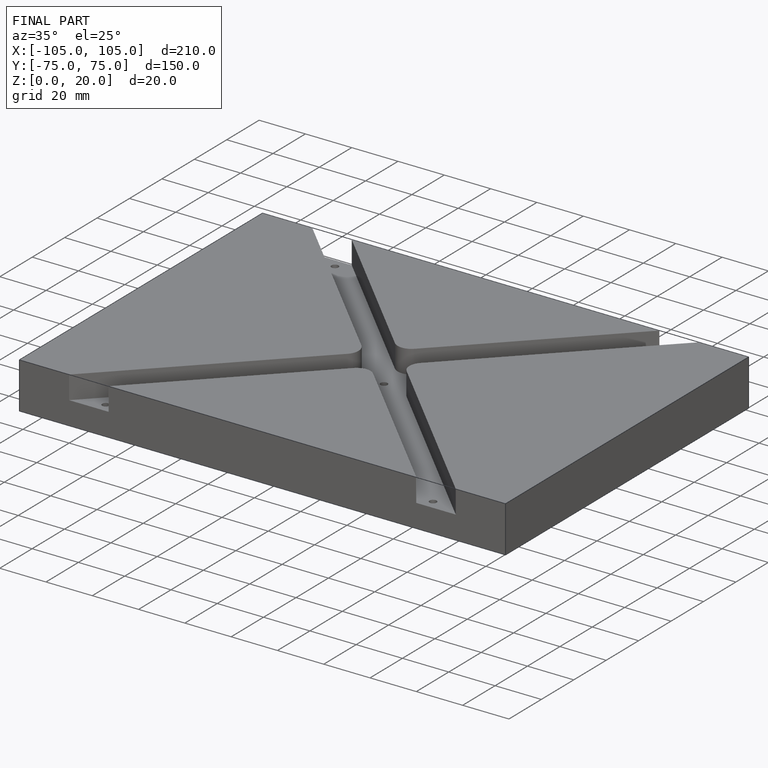
[diagram: finished part — iso view with bounding-box wireframe]
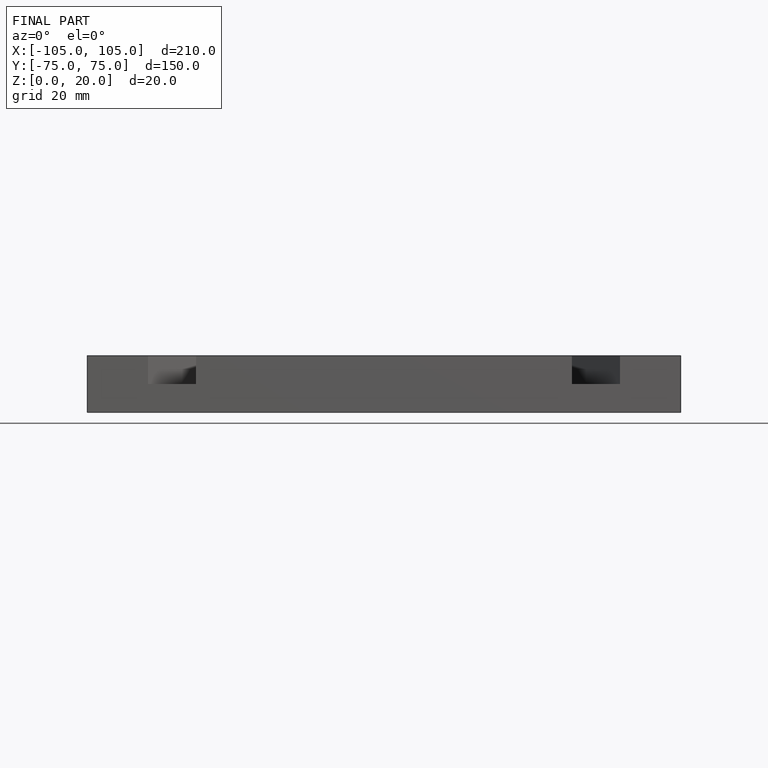
[diagram: finished part — front view with bounding-box wireframe]
